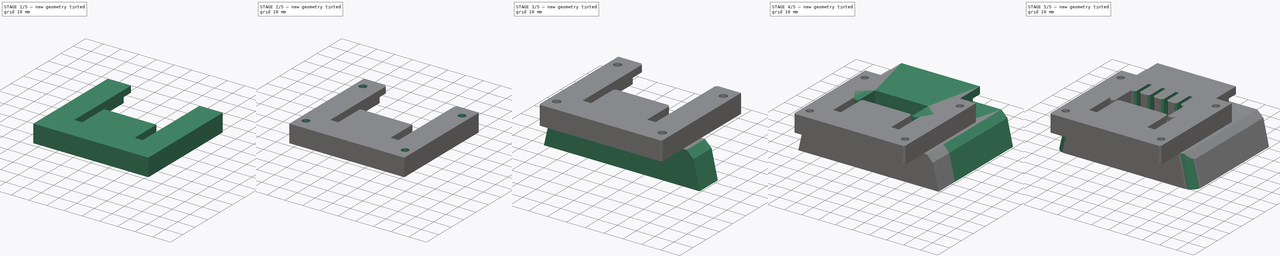
[diagram: build sequence overview — one tinted view per stage of 5, left to right]
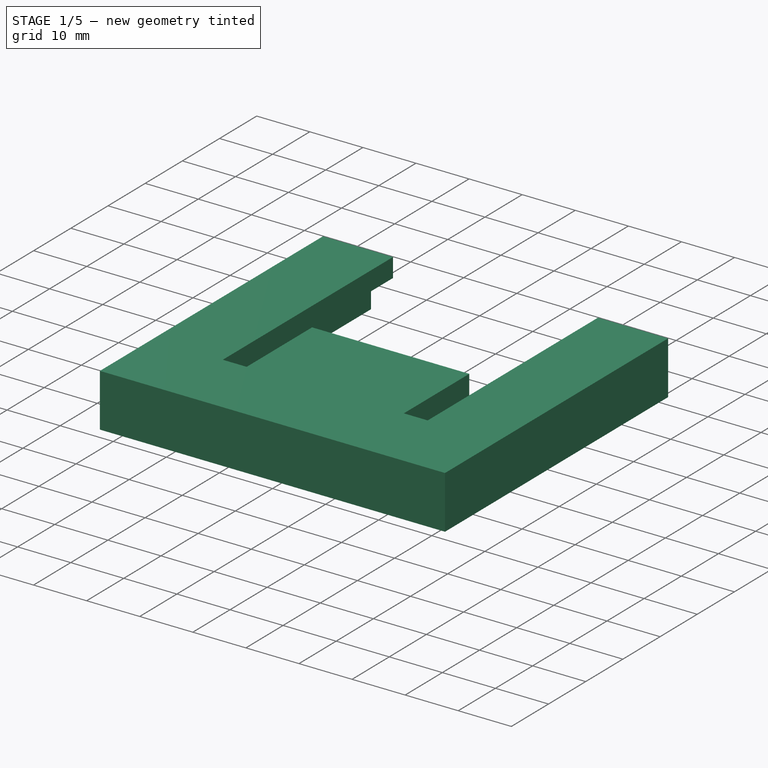
[diagram: stage 1 of 5 — iso view after this stage's code; geometry added in this stage tinted green]
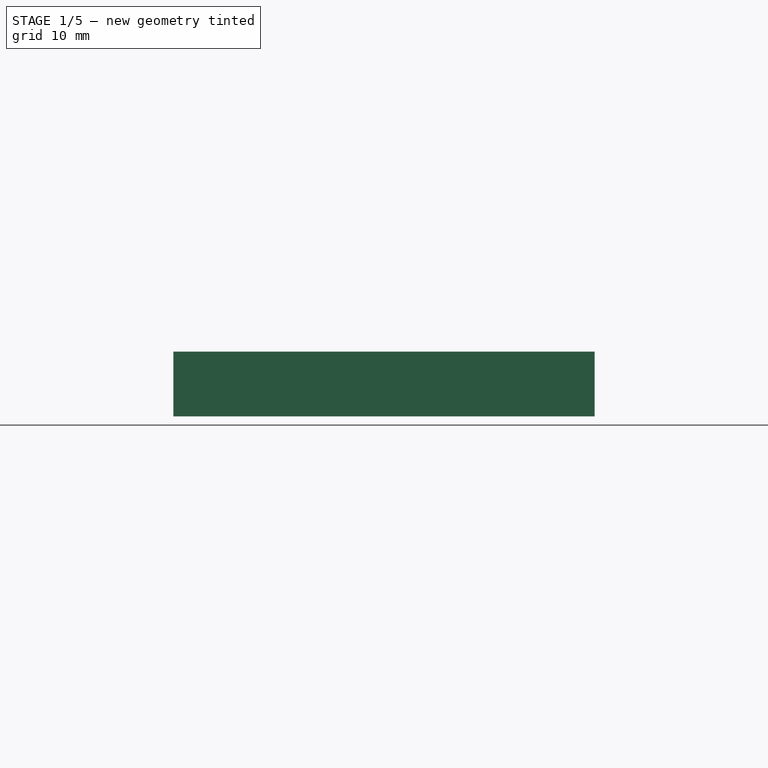
[diagram: stage 1 of 5 — front view after this stage's code; geometry added in this stage tinted green]
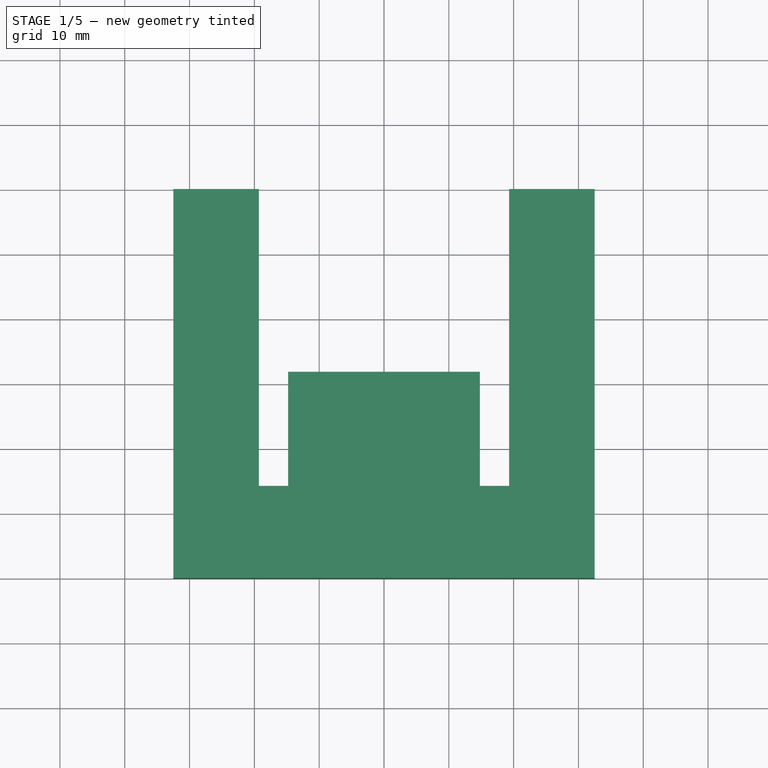
[diagram: stage 1 of 5 — top view after this stage's code; geometry added in this stage tinted green]
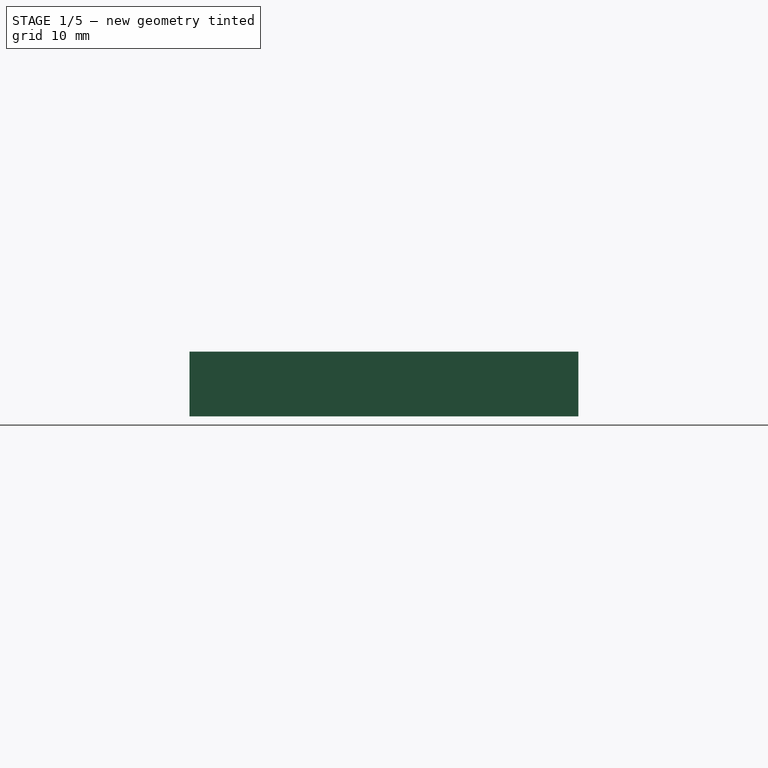
[diagram: stage 1 of 5 — right view after this stage's code; geometry added in this stage tinted green]
FCSTD DOCUMENT  (FreeCAD 0.20R29177 (Git))
Label: LIDLBatPlug_006
License: All rights reserved
LicenseURL: http://en.wikipedia.org/wiki/All_rights_reserved
objects: Sketcher::SketchObject×13, PartDesign::Pocket×10, PartDesign::Pad×4, PartDesign::Fillet×3, PartDesign::Chamfer×3, Spreadsheet::Sheet×2, PartDesign::Body×2, App::Part×2, PartDesign::Plane×1
note: 56 computed .brp shape members not serialized (recipe doc carries the construction recipe); baked Part::Feature solids carry a one-line shape summary decoded from their .brp

FEATURE [PartDesign::Body] Body
  Group = -> [Sketch,Pad,Pad001,Sketch001,Pad002,Sketch002,Pocket,Sketch003,Pocket001,Fillet,Sketch004,Pocket002,Sketch005,Pocket003,Fillet001]
  Origin = -> Origin001
  Tip = -> Fillet001
FEATURE [App::Part] Part  label="LIDLBattPlug"
  Group = -> [Body,Spreadsheet]
  Origin = -> Origin
  Placement = pos=(-1.3e-15,-11.8,10.6) rot=(0,1,0;3.14159rad)
FEATURE [Spreadsheet::Sheet] Spreadsheet001  label="lidlAdaptSp"
  cells = A2=long; B2(long)=60; A3=larg; B3(larg)=65; A4=jeu; B4(jeu)=0.6; A5=encocheLarg; B5(encocheLarg)=29.6; C5=mesuré; A6=encocheProf; B6(encocheProf)=17.6; C6=mesuré sur la base; A7=encocheGranProf; B7(encocheGranProf)=45.8; C7=mesuré sur la base; A8=encocheGrandeLarg; B8(encocheGrandeLarg)==tLargeurGrande; C8=mesuré sur la base; A9=languetteEcart; B9(languetteEcart)=24; A10=languetteEp; B10(languetteEp)==0.75 + jeu / 2; A11=languetteHaut; B11(languetteHaut)==8 + jeu + 0.1; A12=planLanguette; B12(planLanguette)==long / 2 - encocheGranProf + encocheProf; A13=languetteRainureLong; B13(languetteRainureLong)=15; A14=evidCablageLarg; B14(evidCablageLarg)==languetteEcart - 4; A15=evidCablageLong; B15(evidCablageLong)==long - encocheGranProf + encocheProf - 5; A16=evidCablageProf; B16(evidCablageProf)==languetteHaut; A17=evidCablagePosY; B17(evidCablagePosY)=1; A18=evidCavlLangPosY; B18(evidCavlLangPosY)==evidCablagePosY + 2; A19=visDistBordenY; B19(visDistBordenY)=7; A20=visCentrePetitCote; B20(visCentrePetitCote)==(larg - encocheGrandeLarg) / 4; A21=InsertDiam; B21(InsertDiam)=4; A22=visCentreVsCentreEnX; B22(visCentreVsCentreEnX)==encocheGrandeLarg / 2 + visCentrePetitCote; A23=visDistAuCentreEnY; B23(visDistAuCentreEnY)==long / 2 - visDistBordenY; A24=tLargeurPetite; B24(tLargeurPetite)=38.6; C24=mesuré sur la base; A25=tLargeurGrande; B25(tLargeurGrande)=46.9; C25=mesuré sur la base
FEATURE [Sketcher::SketchObject] Sketch006
  FullyConstrained = true
  MapMode = 5
  Support = -> [XY_Plane003]
  expr: Constraints[10] = <<lidlAdaptSp>>.larg
  expr: Constraints[11] = <<lidlAdaptSp>>.long
  sketch-geometry (5):
    g0: LineSegment StartX=-32.5 StartY=30 StartZ=0 EndX=-32.5 EndY=-30 EndZ=0
    g1: LineSegment StartX=-32.5 StartY=-30 StartZ=0 EndX=32.5 EndY=-30 EndZ=0
    g2: LineSegment StartX=32.5 StartY=-30 StartZ=0 EndX=32.5 EndY=30 EndZ=0
    g3: LineSegment StartX=32.5 StartY=30 StartZ=0 EndX=-32.5 EndY=30 EndZ=0
    g4: GeomPoint X=0 Y=0 Z=0
  constraints (12):
    c: Coincident(g0,g1)
    c: Coincident(g1,g2)
    c: Coincident(g2,g3)
    c: Coincident(g3,g0)
    c: Horizontal(g1)
    c: Horizontal(g3)
    c: Vertical(g0)
    c: Vertical(g2)
    c: Symmetric(g1,g0,g4)
    c: Coincident(g4,g-1)
    c: DistanceX(g0,g1) = 65
    c: DistanceY(g0,g0) = 60
FEATURE [PartDesign::Pad] Pad003  label="formeDeBase"
  Direction = (0,0,1)
  Length = 10
  Length2 = 10
  Profile = -> Sketch006
  ReferenceAxis = -> Sketch006 [N_Axis]
  Type = 0
  expr: Length = <<lidlx20Sp>>.tHaut
FEATURE [Sketcher::SketchObject] Sketch007
  FullyConstrained = true
  MapMode = 5
  Support = -> [XY_Plane003]
  expr: Constraints[15] = <<lidlAdaptSp>>.tLargeurPetite
  expr: Constraints[16] = <<lidlAdaptSp>>.long / 2
  expr: Constraints[17] = <<lidlAdaptSp>>.encocheLarg
  expr: Constraints[18] = <<lidlAdaptSp>>.encocheProf
  expr: Constraints[19] = <<lidlAdaptSp>>.encocheGranProf
  sketch-geometry (8):
    g0: LineSegment StartX=-19.3 StartY=30 StartZ=0 EndX=-19.3 EndY=-15.8 EndZ=0
    g1: LineSegment StartX=-19.3 StartY=-15.8 StartZ=0 EndX=-14.8 EndY=-15.8 EndZ=0
    g2: LineSegment StartX=-14.8 StartY=-15.8 StartZ=0 EndX=-14.8 EndY=1.8 EndZ=0
    g3: LineSegment StartX=-14.8 StartY=1.8 StartZ=0 EndX=14.8 EndY=1.8 EndZ=0
    g4: LineSegment StartX=14.8 StartY=1.8 StartZ=0 EndX=14.8 EndY=-15.8 EndZ=0
    g5: LineSegment StartX=14.8 StartY=-15.8 StartZ=0 EndX=19.3 EndY=-15.8 EndZ=0
    g6: LineSegment StartX=19.3 StartY=-15.8 StartZ=0 EndX=19.3 EndY=30 EndZ=0
    g7: LineSegment StartX=19.3 StartY=30 StartZ=0 EndX=-19.3 EndY=30 EndZ=0
  constraints (20):
    c: Vertical(g0)
    c: Coincident(g0,g1)
    c: Coincident(g1,g2)
    c: Coincident(g2,g3)
    c: Coincident(g3,g4)
    c: Vertical(g4)
    c: Coincident(g4,g5)
    c: Horizontal(g5)
    c: Coincident(g5,g6)
    c: Coincident(g6,g7)
    c: Coincident(g7,g0)
    c: Symmetric(g1,g4,g-2)
    c: Symmetric(g2,g3,g-2)
    c: Symmetric(g0,g5,g-2)
    c: Symmetric(g0,g6,g-2)
    c: DistanceX(g0,g6) = 38.6
    c: DistanceY(g-1,g0) = 30
    c: DistanceX(g2,g3) = 29.6
    c: DistanceY(g4,g3) = 17.6
    c: DistanceY(g5,g6) = 45.8
FEATURE [PartDesign::Pocket] Pocket004  label="encoche"
  BaseFeature = -> Pad003
  Direction = (0,0,-1)
  Length = 5
  Length2 = 5
  Profile = -> Sketch007
  ReferenceAxis = -> Sketch007 [N_Axis]
  Reversed = true
  Type = 1
FEATURE [Sketcher::SketchObject] Sketch008
  FullyConstrained = true
  MapMode = 5
  Support = -> [XY_Plane003]
  expr: Constraints[17] = <<lidlAdaptSp>>.encocheLarg
  expr: Constraints[18] = <<lidlAdaptSp>>.encocheProf
  expr: Constraints[7] = <<lidlAdaptSp>>.encocheGrandeLarg
  expr: Constraints[8] = <<lidlAdaptSp>>.encocheGranProf
  expr: Constraints[9] = <<lidlAdaptSp>>.long / 2
  sketch-geometry (8):
    g0: LineSegment StartX=-23.45 StartY=30 StartZ=0 EndX=23.45 EndY=30 EndZ=0
    g1: LineSegment StartX=23.45 StartY=30 StartZ=0 EndX=23.45 EndY=-15.8 EndZ=0
    g2: LineSegment StartX=23.45 StartY=-15.8 StartZ=0 EndX=14.8 EndY=-15.8 EndZ=0
    g3: LineSegment StartX=-23.45 StartY=-15.8 StartZ=0 EndX=-23.45 EndY=30 EndZ=0
    g4: LineSegment StartX=-14.8 StartY=-15.8 StartZ=0 EndX=-14.8 EndY=1.8 EndZ=0
    g5: LineSegment StartX=-14.8 StartY=1.8 StartZ=0 EndX=14.8 EndY=1.8 EndZ=0
    g6: LineSegment StartX=14.8 StartY=1.8 StartZ=0 EndX=14.8 EndY=-15.8 EndZ=0
    g7: LineSegment StartX=-14.8 StartY=-15.8 StartZ=0 EndX=-23.45 EndY=-15.8 EndZ=0
  constraints (21):
    c: Coincident(g0,g1)
    c: Coincident(g1,g2)
    c: Coincident(g7,g3)
    c: Coincident(g3,g0)
    c: Horizontal(g2)
    c: Vertical(g1)
    c: Symmetric(g0,g0,g-2)
    c: DistanceX(g0,g0) = 46.9
    c: DistanceY(g7,g0) = 45.8
    c: DistanceY(g-1,g0) = 30
    c: Vertical(g4)
    c: Coincident(g4,g5)
    c: Horizontal(g5)
    c: Coincident(g5,g6)
    c: Vertical(g6)
    c: Symmetric(g4,g6,g-2)
    c: Coincident(g7,g4)
    c: DistanceX(g4,g5) = 29.6
    c: DistanceY(g2,g5) = 17.6
    c: Coincident(g2,g6)
    c: Symmetric(g1,g3,g-2)
FEATURE [PartDesign::Pocket] Pocket005
  BaseFeature = -> Pocket004
  Direction = (0,0,-1)
  Length = 6.43
  Length2 = 5
  Profile = -> Sketch008
  ReferenceAxis = -> Sketch008 [N_Axis]
  Reversed = true
  Type = 0
  expr: Length = <<lidlx20Sp>>.tHautPied + <<lidlAdaptSp>>.jeu
FEATURE [PartDesign::Plane] DatumPlane  label="planLanguette"
  AttachmentOffset = pos=(0,0,-1.8) rot=(0,0,1;0rad)
  Length = 76.4018
  MapMode = 5
  Placement = pos=(0,1.8,4e-16) rot=(1,0,0;1.5708rad)
  ResizeMode = 0
  Support = -> [XZ_Plane003]
  Width = 61.4018
  expr: .AttachmentOffset.Base.z = -<<lidlAdaptSp>>.planLanguette
FEATURE [Sketcher::SketchObject] Sketch009
  FullyConstrained = true
  MapMode = 5
  Placement = pos=(0,1.8,4e-16) rot=(1,0,0;1.5708rad)
  Support = -> [DatumPlane]
  expr: Constraints[17] = <<lidlAdaptSp>>.languetteEp
  expr: Constraints[20] = <<lidlAdaptSp>>.languetteEcart + <<lidlAdaptSp>>.languetteEp
  expr: Constraints[21] = <<lidlAdaptSp>>.languetteHaut
  sketch-geometry (8):
    g0: LineSegment StartX=-12.525 StartY=0 StartZ=0 EndX=-11.475 EndY=0 EndZ=0
    g1: LineSegment StartX=-11.475 StartY=0 StartZ=0 EndX=-11.475 EndY=8.7 EndZ=0
    g2: LineSegment StartX=-11.475 StartY=8.7 StartZ=0 EndX=-12.525 EndY=8.7 EndZ=0
    g3: LineSegment StartX=-12.525 StartY=8.7 StartZ=0 EndX=-12.525 EndY=0 EndZ=0
    g4: LineSegment StartX=11.475 StartY=0 StartZ=0 EndX=12.525 EndY=0 EndZ=0
    g5: LineSegment StartX=12.525 StartY=0 StartZ=0 EndX=12.525 EndY=8.7 EndZ=0
    g6: LineSegment StartX=12.525 StartY=8.7 StartZ=0 EndX=11.475 EndY=8.7 EndZ=0
    g7: LineSegment StartX=11.475 StartY=8.7 StartZ=0 EndX=11.475 EndY=0 EndZ=0
  constraints (22):
    c: Coincident(g0,g1)
    c: Coincident(g1,g2)
    c: Coincident(g2,g3)
    c: Coincident(g3,g0)
    c: Horizontal(g0)
    c: Horizontal(g2)
    c: Vertical(g1)
    c: Vertical(g3)
    c: PointOnObject(g0,g-1)
    c: Coincident(g4,g5)
    c: Coincident(g5,g6)
    c: Coincident(g6,g7)
    c: Coincident(g7,g4)
    c: Horizontal(g4)
    c: Horizontal(g6)
    c: Vertical(g5)
    c: Vertical(g7)
    c: DistanceX(g2,g1) = 1.05
    c: Symmetric(g0,g4,g-2)
    c: Symmetric(g2,g5,g-2)
    c: DistanceX(g0,g4) = 25.05
    c: DistanceY(g4,g5) = 8.7
FEATURE [PartDesign::Pocket] Pocket006  label="languettes"
  BaseFeature = -> Pocket005
  Direction = (0,1,2e-16)
  Length = 15
  Length2 = 5
  Profile = -> Sketch009
  ReferenceAxis = -> Sketch009 [N_Axis]
  Reversed = true
  Type = 0
  expr: Length = <<lidlAdaptSp>>.languetteRainureLong
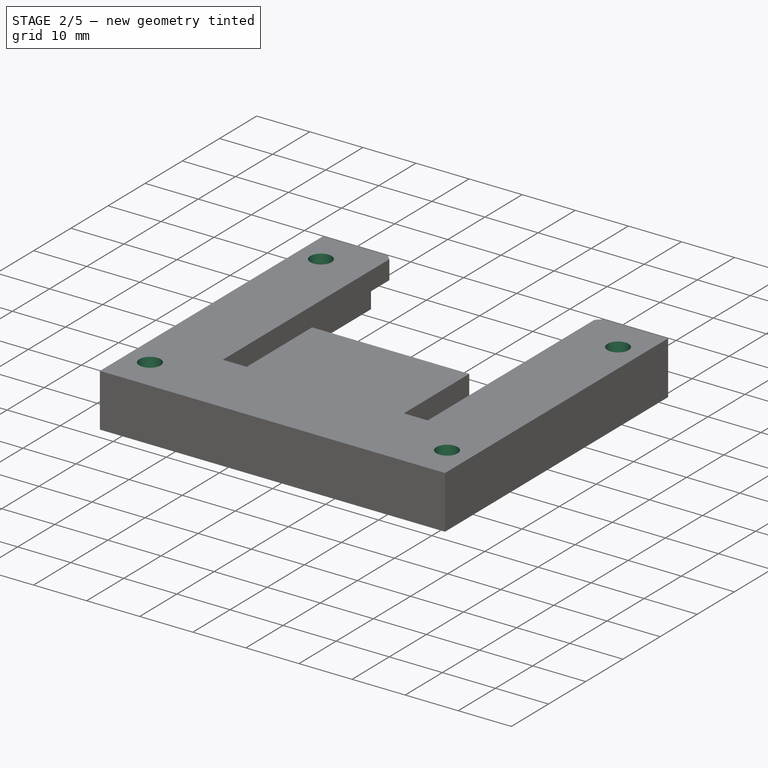
[diagram: stage 2 of 5 — iso view after this stage's code; geometry added in this stage tinted green]
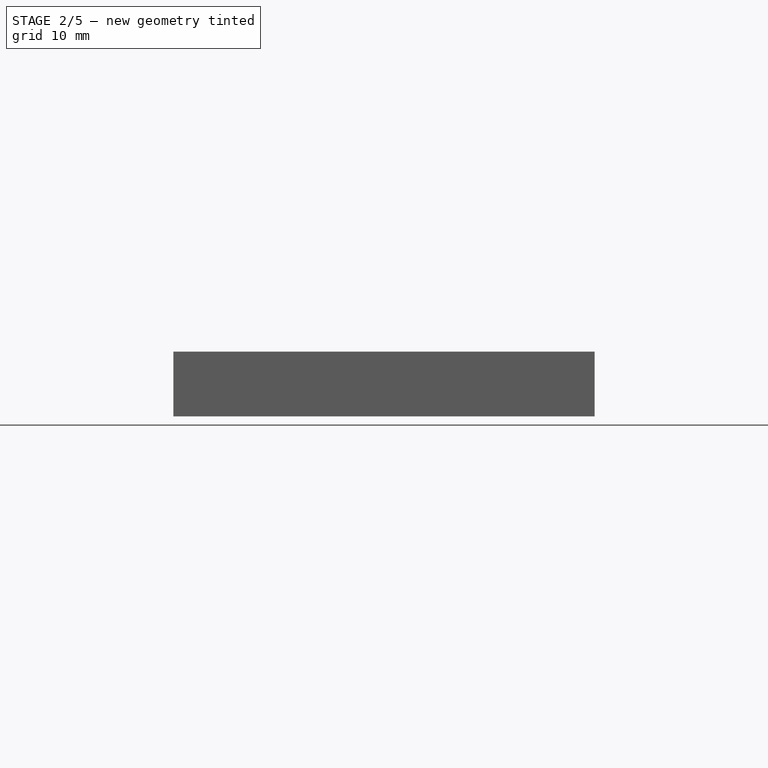
[diagram: stage 2 of 5 — front view after this stage's code; geometry added in this stage tinted green]
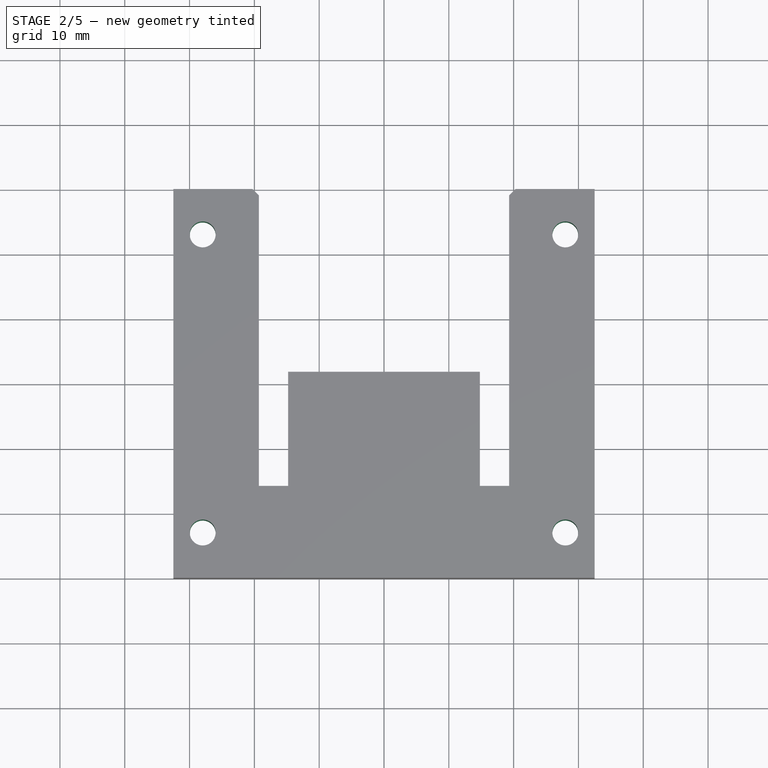
[diagram: stage 2 of 5 — top view after this stage's code; geometry added in this stage tinted green]
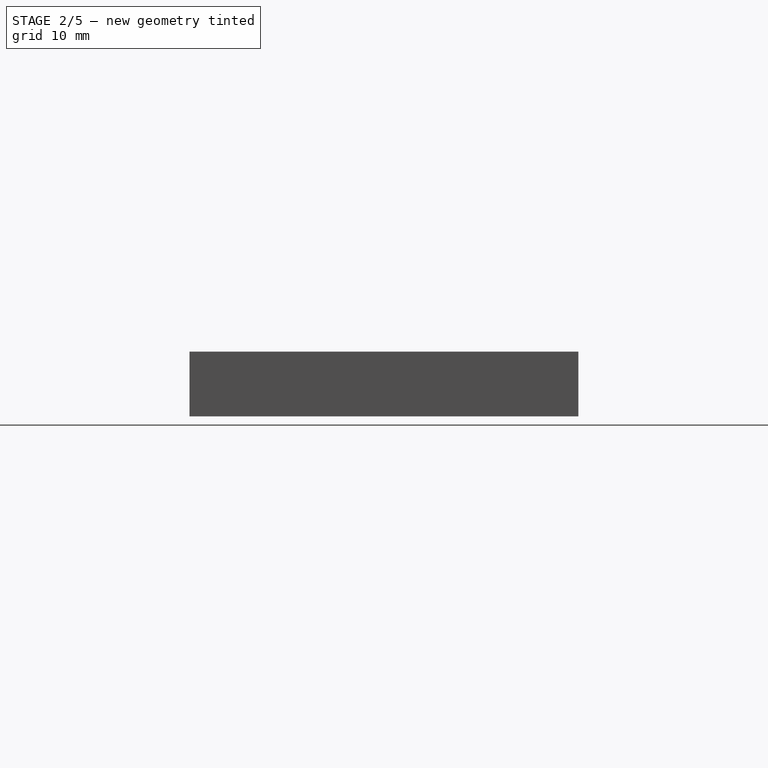
[diagram: stage 2 of 5 — right view after this stage's code; geometry added in this stage tinted green]
FEATURE [Sketcher::SketchObject] Sketch010
  FullyConstrained = true
  MapMode = 5
  Support = -> [XY_Plane003]
  expr: Constraints[10] = <<lidlAdaptSp>>.evidCablageLong
  expr: Constraints[7] = <<lidlAdaptSp>>.evidCablageLarg
  expr: Constraints[9] = <<lidlAdaptSp>>.evidCablagePosY
  sketch-geometry (4):
    g0: LineSegment StartX=-10 StartY=-27.8 StartZ=0 EndX=10 EndY=-27.8 EndZ=0
    g1: LineSegment StartX=10 StartY=-27.8 StartZ=0 EndX=10 EndY=-1 EndZ=0
    g2: LineSegment StartX=10 StartY=-1 StartZ=0 EndX=-10 EndY=-1 EndZ=0
    g3: LineSegment StartX=-10 StartY=-1 StartZ=0 EndX=-10 EndY=-27.8 EndZ=0
  constraints (11):
    c: Coincident(g0,g1)
    c: Coincident(g1,g2)
    c: Coincident(g2,g3)
    c: Coincident(g3,g0)
    c: Horizontal(g2)
    c: Vertical(g1)
    c: Vertical(g3)
    c: DistanceX(g0,g0) = 20
    c: Symmetric(g0,g0,g-2)
    c: DistanceY(g1,g-1) = 1
    c: DistanceY(g0,g1) = 26.8
FEATURE [PartDesign::Pocket] Pocket007  label="evidCablage"
  BaseFeature = -> Pocket006
  Direction = (0,0,-1)
  Length = 8.7
  Length2 = 5
  Profile = -> Sketch010
  ReferenceAxis = -> Sketch010 [N_Axis]
  Reversed = true
  Type = 0
  expr: Length = <<lidlAdaptSp>>.evidCablageProf
FEATURE [Sketcher::SketchObject] Sketch011
  FullyConstrained = true
  MapMode = 5
  Support = -> [XY_Plane003]
  expr: Constraints[16] = <<lidlAdaptSp>>.languetteEp
  expr: Constraints[18] = <<lidlAdaptSp>>.evidCavlLangPosY
  expr: Constraints[19] = <<lidlAdaptSp>>.evidCablageLarg
  expr: Constraints[20] = <<lidlAdaptSp>>.languetteEcart
  sketch-geometry (8):
    g0: LineSegment StartX=-12 StartY=-3 StartZ=0 EndX=-10 EndY=-3 EndZ=0
    g1: LineSegment StartX=-10 StartY=-3 StartZ=0 EndX=-10 EndY=-4.05 EndZ=0
    g2: LineSegment StartX=-10 StartY=-4.05 StartZ=0 EndX=-12 EndY=-4.05 EndZ=0
    g3: LineSegment StartX=-12 StartY=-4.05 StartZ=0 EndX=-12 EndY=-3 EndZ=0
    g4: LineSegment StartX=10 StartY=-3 StartZ=0 EndX=12 EndY=-3 EndZ=0
    g5: LineSegment StartX=12 StartY=-3 StartZ=0 EndX=12 EndY=-4.05 EndZ=0
    g6: LineSegment StartX=12 StartY=-4.05 StartZ=0 EndX=10 EndY=-4.05 EndZ=0
    g7: LineSegment StartX=10 StartY=-4.05 StartZ=0 EndX=10 EndY=-3 EndZ=0
  constraints (21):
    c: Coincident(g0,g1)
    c: Coincident(g1,g2)
    c: Coincident(g2,g3)
    c: Coincident(g3,g0)
    c: Horizontal(g0)
    c: Horizontal(g2)
    c: Vertical(g1)
    c: Vertical(g3)
    c: Coincident(g4,g5)
    c: Coincident(g5,g6)
    c: Coincident(g6,g7)
    c: Coincident(g7,g4)
    c: Horizontal(g6)
    c: Vertical(g5)
    c: Symmetric(g0,g4,g-2)
    c: Symmetric(g0,g4,g-2)
    c: DistanceY(g2,g0) = 1.05
    c: Symmetric(g1,g6,g-2)
    c: DistanceY(g0,g-1) = 3
    c: DistanceX(g0,g4) = 20
    c: DistanceX(g0,g4) = 24
FEATURE [PartDesign::Pocket] Pocket008  label="passageLangetteVersCablage"
  BaseFeature = -> Pocket007
  Direction = (0,0,-1)
  Length = 8.7
  Length2 = 5
  Profile = -> Sketch011
  ReferenceAxis = -> Sketch011 [N_Axis]
  Reversed = true
  Type = 0
  expr: Length = <<lidlAdaptSp>>.languetteHaut
FEATURE [Sketcher::SketchObject] Sketch012
  FullyConstrained = true
  MapMode = 5
  Support = -> [XY_Plane003]
  expr: Constraints[14] = <<lidlAdaptSp>>.InsertDiam
  expr: Constraints[18] = <<lidlAdaptSp>>.visDistAuCentreEnY
  expr: Constraints[19] = <<lidlAdaptSp>>.visCentreVsCentreEnX
  sketch-geometry (9):
    g0: LineSegment StartX=-27.975 StartY=23 StartZ=0 EndX=-27.975 EndY=-23 EndZ=0
    g1: LineSegment StartX=-27.975 StartY=-23 StartZ=0 EndX=27.975 EndY=-23 EndZ=0
    g2: LineSegment StartX=27.975 StartY=-23 StartZ=0 EndX=27.975 EndY=23 EndZ=0
    g3: LineSegment StartX=27.975 StartY=23 StartZ=0 EndX=-27.975 EndY=23 EndZ=0
    g4: GeomPoint X=0 Y=0 Z=0
    g5: Circle CenterX=-27.975 CenterY=23 CenterZ=0 NormalX=0 NormalY=0 NormalZ=1 AngleXU=0 Radius=2
    g6: Circle CenterX=27.975 CenterY=23 CenterZ=0 NormalX=0 NormalY=0 NormalZ=1 AngleXU=0 Radius=2
    g7: Circle CenterX=27.975 CenterY=-23 CenterZ=0 NormalX=0 NormalY=0 NormalZ=1 AngleXU=0 Radius=2
    g8: Circle CenterX=-27.975 CenterY=-23 CenterZ=0 NormalX=0 NormalY=0 NormalZ=1 AngleXU=0 Radius=2
  constraints (20):
    c: Coincident(g0,g1)
    c: Coincident(g1,g2)
    c: Coincident(g2,g3)
    c: Coincident(g3,g0)
    c: Horizontal(g1)
    c: Horizontal(g3)
    c: Vertical(g0)
    c: Vertical(g2)
    c: Symmetric(g1,g0,g4)
    c: Coincident(g4,g-1)
    c: Coincident(g5,g0)
    c: Coincident(g6,g2)
    c: Coincident(g7,g1)
    c: Coincident(g8,g0)
    c: Diameter(g5) = 4
    c: Equal(g5,g6)
    c: Equal(g6,g7)
    c: Equal(g7,g8)
    c: DistanceY(g4,g5) = 23
    c: DistanceX(g5,g4) = 27.975
FEATURE [PartDesign::Pocket] Pocket009  label="vis"
  BaseFeature = -> Pocket008
  Direction = (0,0,-1)
  Length = 5
  Length2 = 5
  Profile = -> Sketch012
  ReferenceAxis = -> Sketch012 [N_Axis]
  Reversed = true
  Type = 1
FEATURE [PartDesign::Chamfer] Chamfer
  Angle = 45
  Base = -> Pocket009 [Edge77,Edge7]
  BaseFeature = -> Pocket009
  ChamferType = 0
  FlipDirection = false
  Size = 1
  Size2 = 1
  SupportTransform = false
  UseAllEdges = false
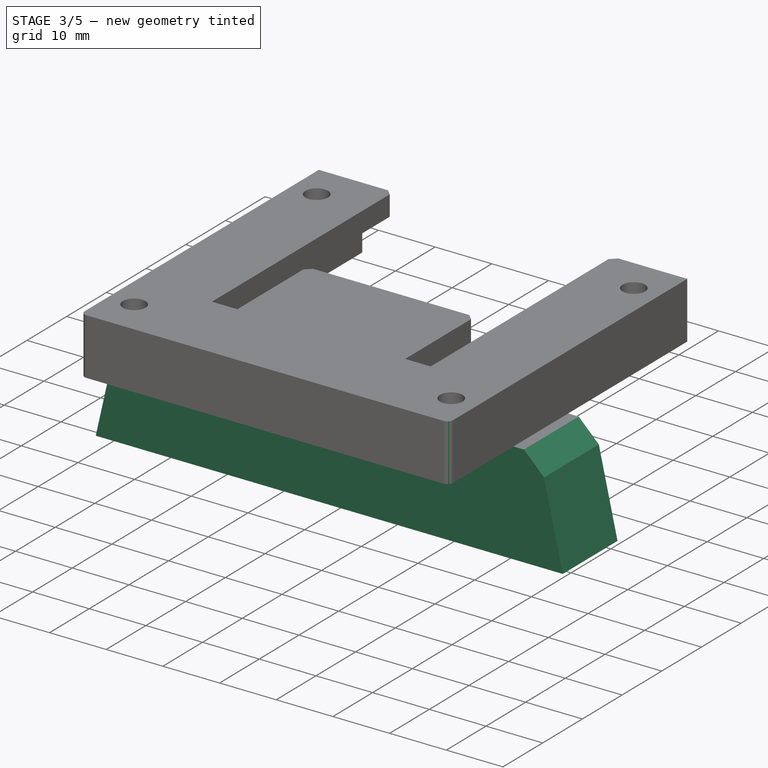
[diagram: stage 3 of 5 — iso view after this stage's code; geometry added in this stage tinted green]
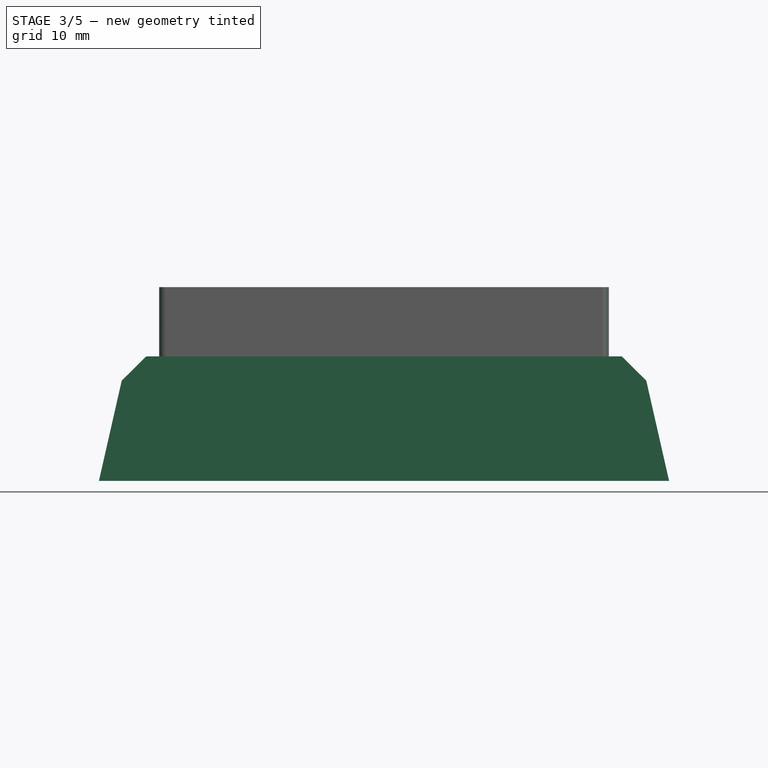
[diagram: stage 3 of 5 — front view after this stage's code; geometry added in this stage tinted green]
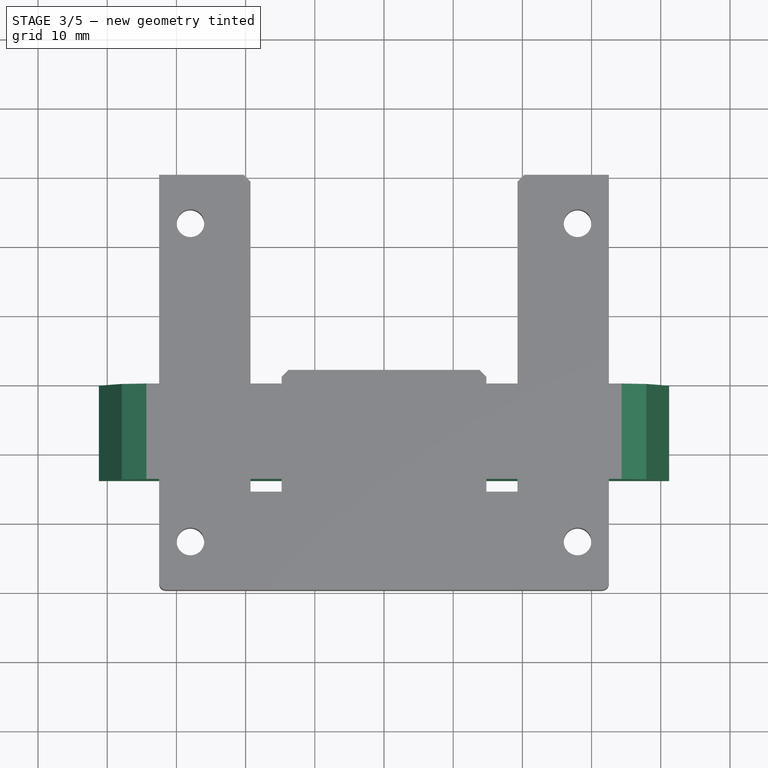
[diagram: stage 3 of 5 — top view after this stage's code; geometry added in this stage tinted green]
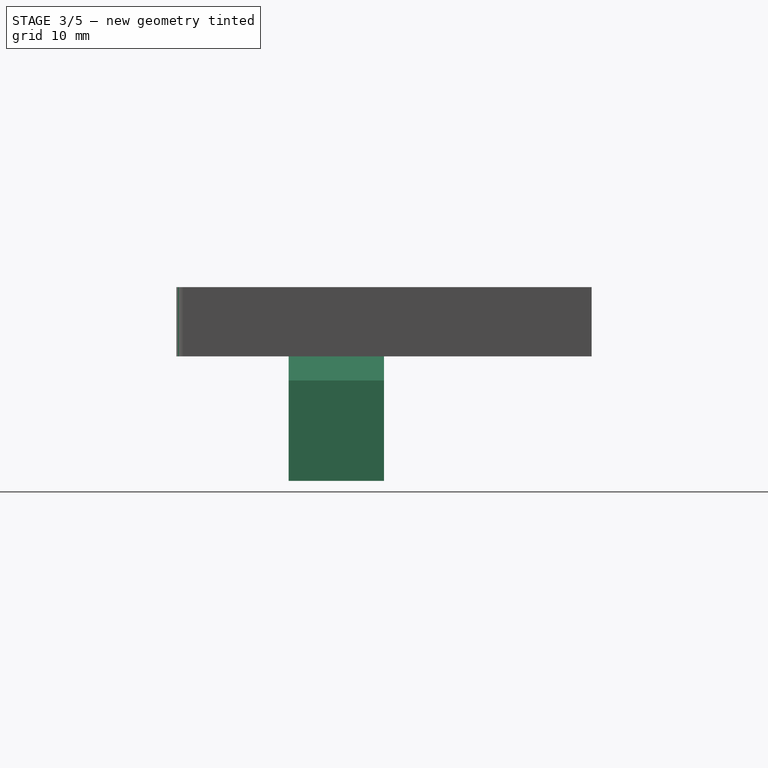
[diagram: stage 3 of 5 — right view after this stage's code; geometry added in this stage tinted green]
FEATURE [Sketcher::SketchObject] Sketch
  FullyConstrained = true
  MapMode = 5
  Placement = pos=(0,0,0) rot=(1,0,0;1.5708rad)
  Support = -> [XZ_Plane001]
  sketch-geometry (6):
    g0: LineSegment StartX=34.35 StartY=0 StartZ=0 EndX=-34.35 EndY=0 EndZ=0
    g1: LineSegment StartX=-34.35 StartY=0 StartZ=0 EndX=-37.9 EndY=-3.5 EndZ=0
    g2: LineSegment StartX=-37.9 StartY=-3.5 StartZ=0 EndX=-41.2 EndY=-18 EndZ=0
    g3: LineSegment StartX=-41.2 StartY=-18 StartZ=0 EndX=41.2 EndY=-18 EndZ=0
    g4: LineSegment StartX=41.2 StartY=-18 StartZ=0 EndX=37.9 EndY=-3.5 EndZ=0
    g5: LineSegment StartX=37.9 StartY=-3.5 StartZ=0 EndX=34.35 EndY=0 EndZ=0
  constraints (15):
    c: PointOnObject(g0,g-1)
    c: Coincident(g0,g1)
    c: Coincident(g1,g2)
    c: Coincident(g2,g3)
    c: Coincident(g3,g4)
    c: Coincident(g4,g5)
    c: Coincident(g5,g0)
    c: Symmetric(g0,g0,g-1)
    c: Symmetric(g1,g4,g-2)
    c: Symmetric(g2,g3,g-2)
    c: DistanceY(g4,g0) = 3.5
    c: DistanceY(g3,g0) = 18
    c: DistanceX(g0,g0) = 68.7
    c: DistanceX(g1,g4) = 75.8
    c: DistanceX(g3,g3) = 82.4
FEATURE [PartDesign::Pad] Pad
  Direction = (1,1,1)
  Length = 13.79
  Length2 = 100
  Placement = pos=(0,0,0) rot=(1,0,0;1.5708rad)
  Profile = -> Sketch
  Type = 0
FEATURE [PartDesign::Chamfer] Chamfer001
  Angle = 45
  Base = -> Chamfer [Edge79,Edge116,Edge93,Edge66]
  BaseFeature = -> Chamfer
  ChamferType = 0
  FlipDirection = false
  Size = 1
  Size2 = 1
  SupportTransform = false
  UseAllEdges = false
FEATURE [PartDesign::Chamfer] Chamfer002
  Angle = 45
  Base = -> Chamfer001 [Edge63,Edge49]
  BaseFeature = -> Chamfer001
  ChamferType = 0
  FlipDirection = false
  Size = 2
  Size2 = 1
  SupportTransform = false
  UseAllEdges = false
FEATURE [PartDesign::Fillet] Fillet002
  Base = -> Chamfer002 [Edge74,Edge43]
  BaseFeature = -> Chamfer002
  Radius = 1
  SupportTransform = false
  UseAllEdges = false
FEATURE [PartDesign::Body] Body001  label="lidlAdaptBdy"
  Group = -> [Sketch006,Pad003,Sketch007,Pocket004,Sketch008,Pocket005,DatumPlane,Sketch009,Pocket006,Sketch010,Pocket007,Sketch011,Pocket008,Sketch012,Pocket009,Chamfer,Chamfer001,Chamfer002,Fillet002]
  Origin = -> Origin003
  Tip = -> Fillet002
FEATURE [App::Part] Part001  label="LIDLBATAdapt"
  Group = -> [Body001,Spreadsheet001]
  Origin = -> Origin002
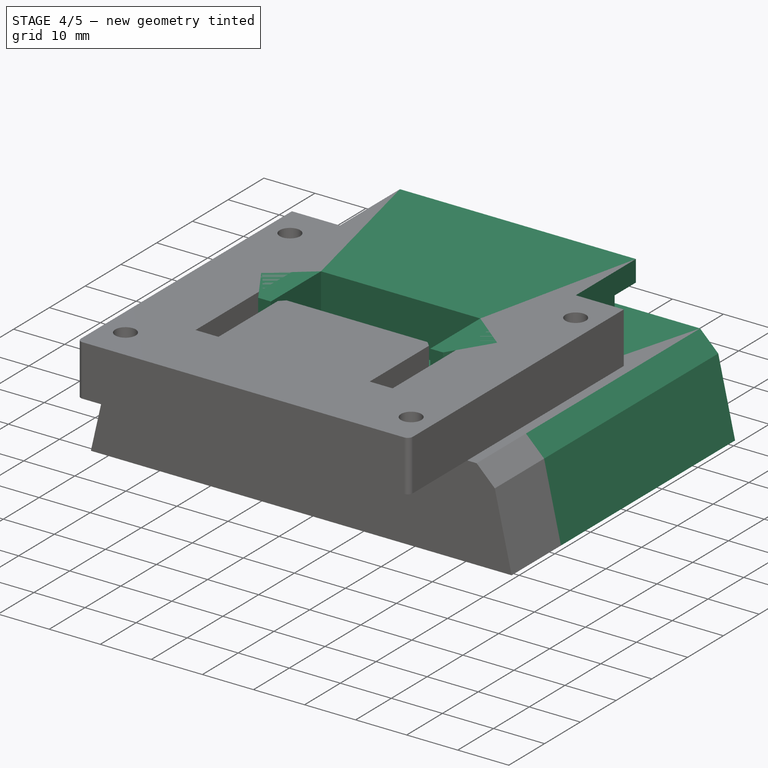
[diagram: stage 4 of 5 — iso view after this stage's code; geometry added in this stage tinted green]
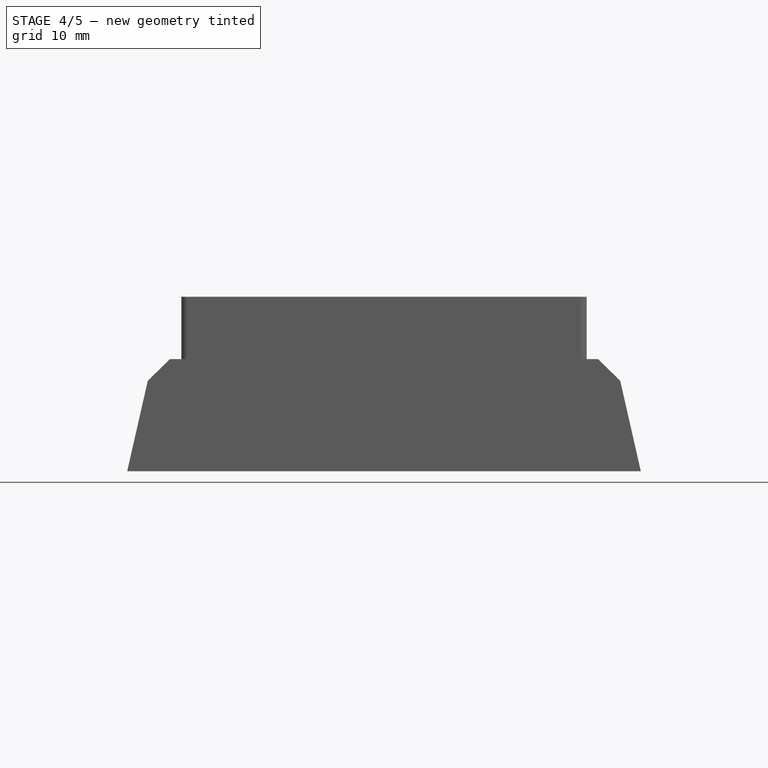
[diagram: stage 4 of 5 — front view after this stage's code; geometry added in this stage tinted green]
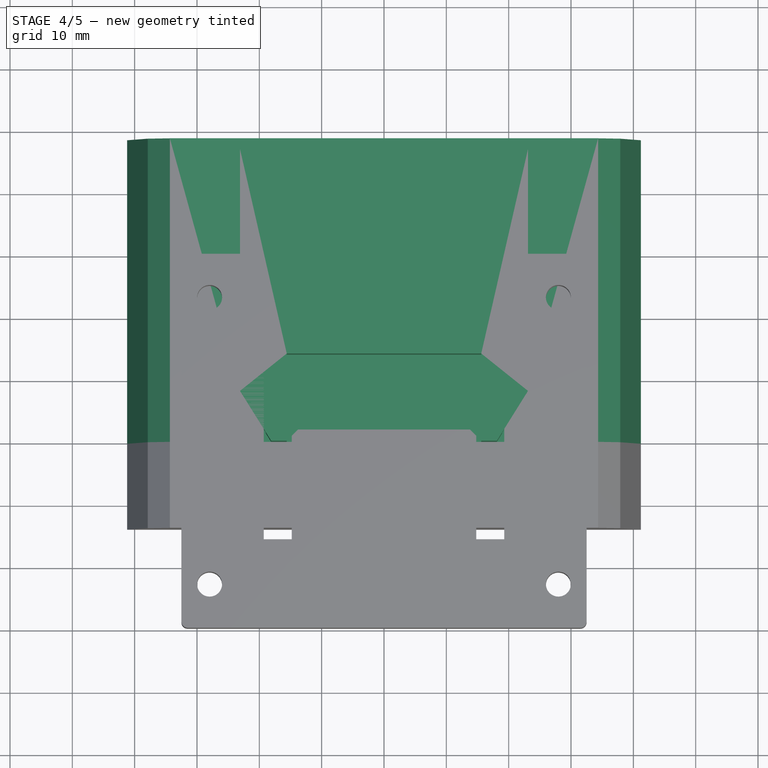
[diagram: stage 4 of 5 — top view after this stage's code; geometry added in this stage tinted green]
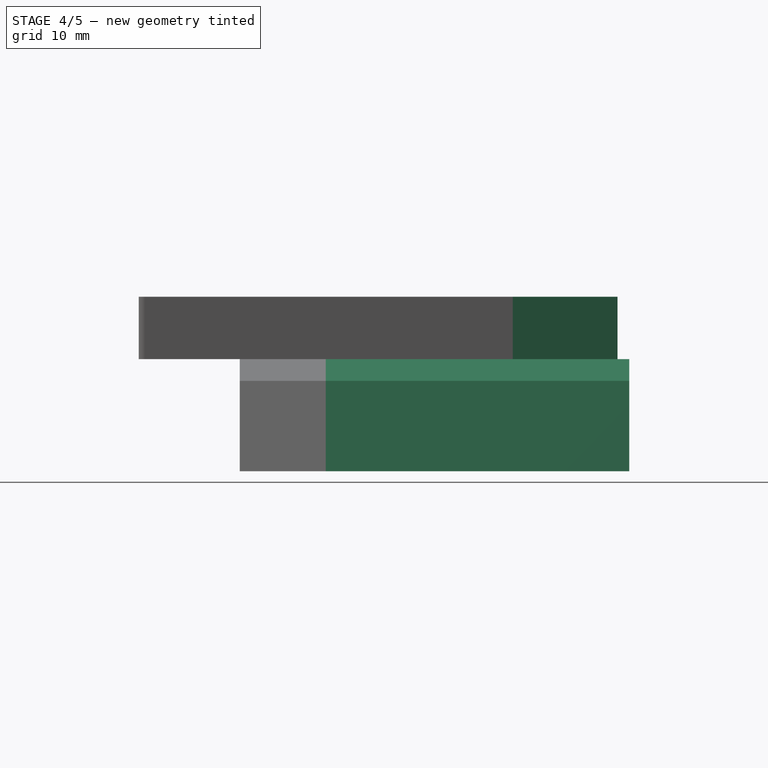
[diagram: stage 4 of 5 — right view after this stage's code; geometry added in this stage tinted green]
FEATURE [PartDesign::Pad] Pad001
  BaseFeature = -> Pad
  Direction = (1,1,1)
  Length = 48.7
  Length2 = 100
  Placement = pos=(0,0,0) rot=(1,0,0;1.5708rad)
  Profile = -> Sketch
  Reversed = true
  Type = 0
FEATURE [Sketcher::SketchObject] Sketch001
  FullyConstrained = true
  MapMode = 5
  Placement = pos=(0,0,0) rot=(1,0,0;1.5708rad)
  Support = -> [XZ_Plane001]
  expr: Constraints[16] = <<lidlx20Sp>>.tLargGrande
  expr: Constraints[17] = <<lidlx20Sp>>.tLargPetite
  expr: Constraints[18] = <<lidlx20Sp>>.tHaut
  expr: Constraints[19] = <<lidlx20Sp>>.tHautPied
  sketch-geometry (8):
    g0: LineSegment StartX=-18.95 StartY=0 StartZ=0 EndX=-18.95 EndY=5.83 EndZ=0
    g1: LineSegment StartX=-18.95 StartY=5.83 StartZ=0 EndX=-23.1 EndY=5.83 EndZ=0
    g2: LineSegment StartX=-23.1 StartY=5.83 StartZ=0 EndX=-23.1 EndY=10 EndZ=0
    g3: LineSegment StartX=-23.1 StartY=10 StartZ=0 EndX=23.1 EndY=10 EndZ=0
    g4: LineSegment StartX=23.1 StartY=10 StartZ=0 EndX=23.1 EndY=5.83 EndZ=0
    g5: LineSegment StartX=23.1 StartY=5.83 StartZ=0 EndX=18.95 EndY=5.83 EndZ=0
    g6: LineSegment StartX=18.95 StartY=5.83 StartZ=0 EndX=18.95 EndY=0 EndZ=0
    g7: LineSegment StartX=18.95 StartY=0 StartZ=0 EndX=-18.95 EndY=0 EndZ=0
  constraints (21):
    c: PointOnObject(g0,g-1)
    c: Vertical(g0)
    c: Coincident(g0,g1)
    c: Horizontal(g1)
    c: Coincident(g1,g2)
    c: Vertical(g2)
    c: Coincident(g2,g3)
    c: Coincident(g3,g4)
    c: Coincident(g4,g5)
    c: Coincident(g5,g6)
    c: Coincident(g6,g7)
    c: Coincident(g0,g7)
    c: Symmetric(g0,g6,g-1)
    c: Equal(g5,g1)
    c: Horizontal(g5)
    c: Symmetric(g2,g3,g-2)
    c: DistanceX(g3,g3) = 46.2
    c: DistanceX(g0,g6) = 37.9
    c: DistanceY(g6,g3) = 10
    c: DistanceY(g6,g5) = 5.83
    c: Symmetric(g0,g5,g-2)
FEATURE [Spreadsheet::Sheet] Spreadsheet  label="lidlx20Sp"
  cells = A2=tLargGrande; B2(tLargGrande)=46.2; A3=tLargPetite; B3(tLargPetite)=37.9; A4=tHaut; B4(tHaut)=10; A5=tEpChap; B5(tEpChap)==tHaut - tHautPied; A6=tHautPied; B6(tHautPied)=5.83; A7=tProf; B7(tProf)=46.8; A8=encocheLarg; B8(encocheLarg)=31.2; A9=encocheHaut; B9(encocheHaut)==tHaut; A10=encocheProf; B10(encocheProf)=14; A11=biseauProf; B11(biseauProf)=8; A12=biseauLarg; B12(biseauLarg)=5; A13=biseauHaut; B13(biseauHaut)==tHaut; A14=doigtLarg; B14(doigtLarg)=6; A15=doigtEcart; B15(doigtEcart)=2; A16=doigtProf; B16(doigtProf)=11; A17=doigtHaut; B17(doigtHaut)==tHaut
FEATURE [PartDesign::Pad] Pad002
  BaseFeature = -> Pad001
  Direction = (0,-1,-2e-16)
  Length = 46.8
  Length2 = 100
  Placement = pos=(0,0,0) rot=(1,0,0;1.5708rad)
  Profile = -> Sketch001
  Reversed = true
  Type = 0
  expr: Length = <<lidlx20Sp>>.tProf
FEATURE [Sketcher::SketchObject] Sketch002
  FullyConstrained = true
  MapMode = 5
  Placement = pos=(0,0,0) rot=(1,0,0;1.5708rad)
  Support = -> [XZ_Plane001]
  expr: Constraints[10] = <<lidlx20Sp>>.encocheHaut
  expr: Constraints[9] = <<lidlx20Sp>>.encocheLarg
  sketch-geometry (4):
    g0: LineSegment StartX=-15.6 StartY=10 StartZ=0 EndX=15.6 EndY=10 EndZ=0
    g1: LineSegment StartX=15.6 StartY=10 StartZ=0 EndX=15.6 EndY=0 EndZ=0
    g2: LineSegment StartX=15.6 StartY=0 StartZ=0 EndX=-15.6 EndY=0 EndZ=0
    g3: LineSegment StartX=-15.6 StartY=0 StartZ=0 EndX=-15.6 EndY=10 EndZ=0
  constraints (11):
    c: Coincident(g0,g1)
    c: Coincident(g1,g2)
    c: Coincident(g2,g3)
    c: Coincident(g3,g0)
    c: Horizontal(g0)
    c: Horizontal(g2)
    c: Vertical(g1)
    c: Vertical(g3)
    c: Symmetric(g2,g1,g-1)
    c: DistanceX(g0,g0) = 31.2
    c: DistanceY(g1,g1) = 10
FEATURE [PartDesign::Pocket] Pocket
  BaseFeature = -> Pad002
  Direction = (0,1,2e-16)
  Length = 14
  Length2 = 100
  Placement = pos=(0,0,0) rot=(1,0,0;1.5708rad)
  Profile = -> Sketch002
  Type = 0
  expr: Length = <<lidlx20Sp>>.encocheProf
FEATURE [Sketcher::SketchObject] Sketch003
  FullyConstrained = true
  MapMode = 5
  Support = -> [XY_Plane001]
  expr: Constraints[13] = <<lidlx20Sp>>.tLargGrande
  expr: Constraints[14] = <<lidlx20Sp>>.biseauLarg
  expr: Constraints[15] = <<lidlx20Sp>>.biseauProf
  sketch-geometry (6):
    g0: LineSegment StartX=18.1 StartY=0 StartZ=0 EndX=23.1 EndY=8 EndZ=0
    g1: LineSegment StartX=23.1 StartY=8 StartZ=0 EndX=23.1 EndY=0 EndZ=0
    g2: LineSegment StartX=23.1 StartY=0 StartZ=0 EndX=18.1 EndY=0 EndZ=0
    g3: LineSegment StartX=-23.1 StartY=3e-16 StartZ=0 EndX=-23.1 EndY=8 EndZ=0
    g4: LineSegment StartX=-23.1 StartY=8 StartZ=0 EndX=-18.1 EndY=0 EndZ=0
    g5: LineSegment StartX=-18.1 StartY=0 StartZ=0 EndX=-23.1 EndY=3e-16 EndZ=0
  constraints (17):
    c: PointOnObject(g0,g-1)
    c: Coincident(g0,g1)
    c: Vertical(g1)
    c: Coincident(g1,g2)
    c: Coincident(g2,g0)
    c: Horizontal(g2)
    c: Vertical(g3)
    c: Coincident(g3,g4)
    c: PointOnObject(g4,g-1)
    c: Coincident(g4,g5)
    c: Coincident(g5,g3)
    c: Equal(g5,g2)
    c: Symmetric(g1,g3,g-1)
    c: DistanceX(g3,g1) = 46.2
    c: DistanceX(g5,g5) = 5
    c: DistanceY(g1,g1) = 8
    c: Equal(g1,g3)
FEATURE [PartDesign::Pocket] Pocket001  label="biseaux"
  BaseFeature = -> Pocket
  Direction = (0,0,-1)
  Length = 10
  Length2 = 100
  Placement = pos=(0,0,0) rot=(1,0,0;1.5708rad)
  Profile = -> Sketch003
  Reversed = true
  Type = 0
  expr: Length = <<lidlx20Sp>>.biseauHaut
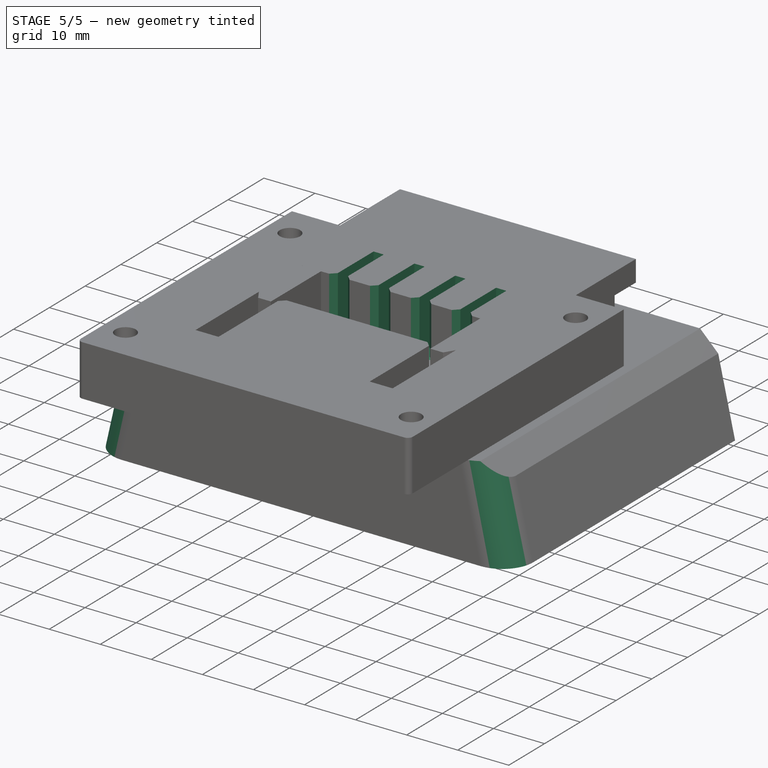
[diagram: stage 5 of 5 — iso view after this stage's code; geometry added in this stage tinted green]
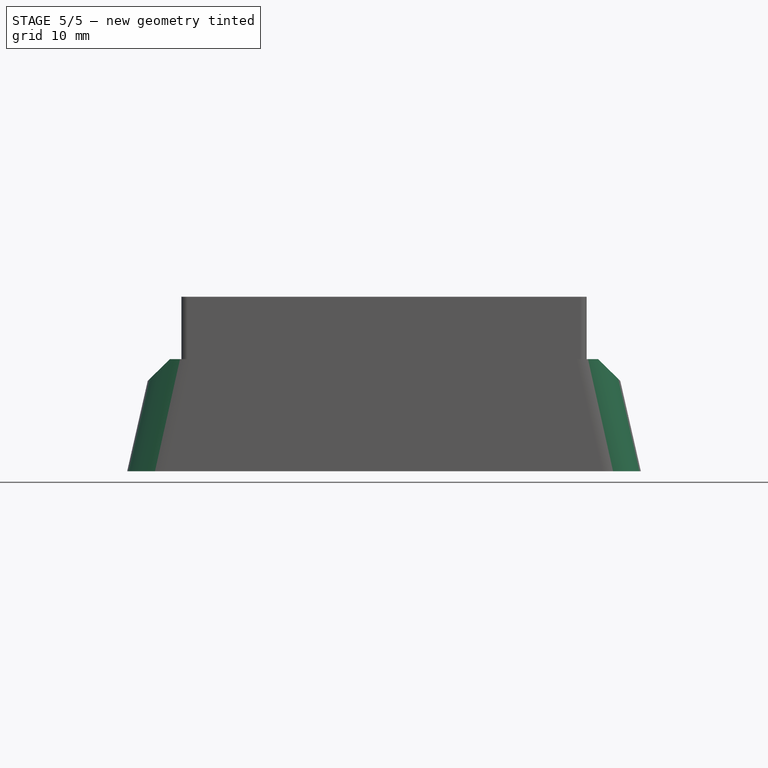
[diagram: stage 5 of 5 — front view after this stage's code; geometry added in this stage tinted green]
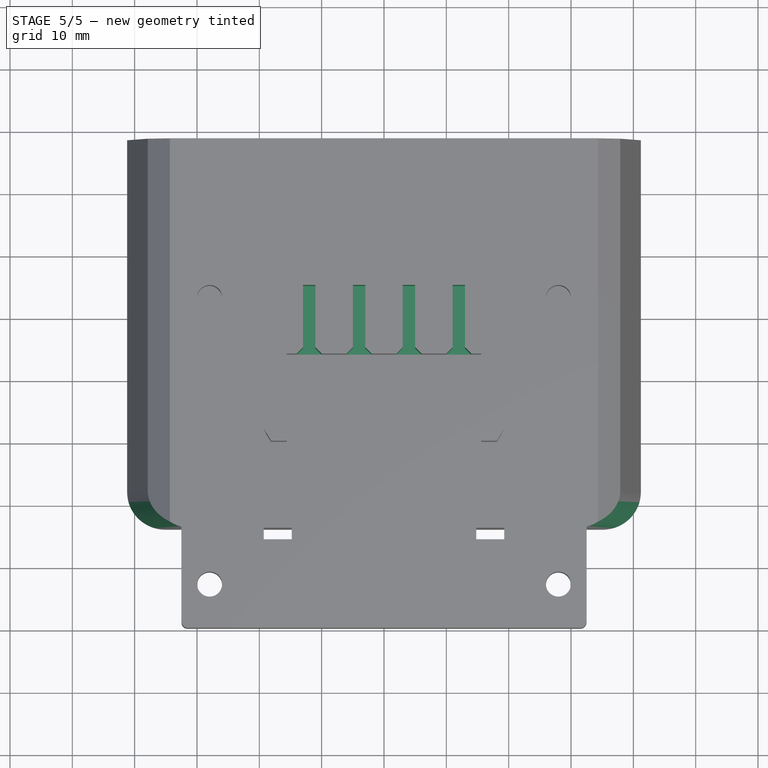
[diagram: stage 5 of 5 — top view after this stage's code; geometry added in this stage tinted green]
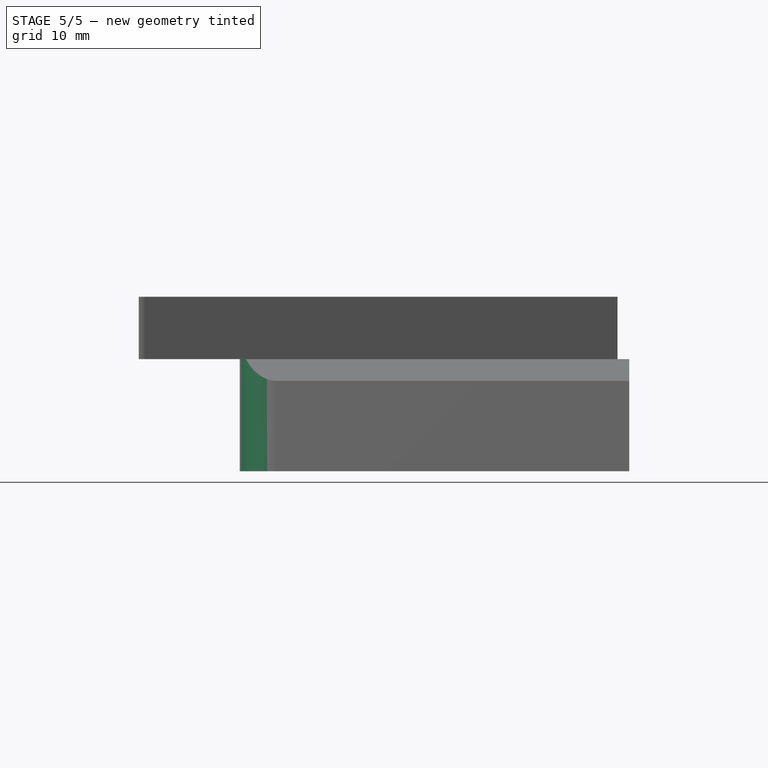
[diagram: stage 5 of 5 — right view after this stage's code; geometry added in this stage tinted green]
FEATURE [PartDesign::Fillet] Fillet
  Base = -> Pocket001 [Edge44,Edge42]
  BaseFeature = -> Pocket001
  Placement = pos=(0,0,0) rot=(1,0,0;1.5708rad)
  Radius = 6
  SupportTransform = false
  UseAllEdges = false
FEATURE [Sketcher::SketchObject] Sketch004
  FullyConstrained = true
  MapMode = 5
  Support = -> [XY_Plane001]
  expr: Constraints[64] = <<lidlx20Sp>>.doigtLarg
  expr: Constraints[68] = <<lidlx20Sp>>.doigtEcart
  expr: Constraints[69] = <<lidlx20Sp>>.doigtProf
  expr: Constraints[70] = <<lidlx20Sp>>.encocheProf
  sketch-geometry (28):
    g0: LineSegment StartX=-11 StartY=25 StartZ=0 EndX=-5 EndY=25 EndZ=0
    g1: LineSegment StartX=-5 StartY=25 StartZ=0 EndX=-5 EndY=14 EndZ=0
    g2: LineSegment StartX=-5 StartY=14 StartZ=0 EndX=-11 EndY=14 EndZ=0
    g3: LineSegment StartX=-11 StartY=14 StartZ=0 EndX=-11 EndY=25 EndZ=0
    g4: LineSegment StartX=-3 StartY=25 StartZ=0 EndX=3 EndY=25 EndZ=0
    g5: LineSegment StartX=3 StartY=25 StartZ=0 EndX=3 EndY=14 EndZ=0
    g6: LineSegment StartX=3 StartY=14 StartZ=0 EndX=-3 EndY=14 EndZ=0
    g7: LineSegment StartX=-3 StartY=14 StartZ=0 EndX=-3 EndY=25 EndZ=0
    g8: LineSegment StartX=5 StartY=25 StartZ=0 EndX=11 EndY=25 EndZ=0
    g9: LineSegment StartX=11 StartY=25 StartZ=0 EndX=11 EndY=14 EndZ=0
    g10: LineSegment StartX=11 StartY=14 StartZ=0 EndX=5 EndY=14 EndZ=0
    g11: LineSegment StartX=5 StartY=14 StartZ=0 EndX=5 EndY=25 EndZ=0
    g12: LineSegment StartX=-11 StartY=25 StartZ=0 EndX=-13 EndY=25 EndZ=0
    g13: LineSegment StartX=-13 StartY=25 StartZ=0 EndX=-13 EndY=14 EndZ=0
    g14: LineSegment StartX=-13 StartY=14 StartZ=0 EndX=-11 EndY=14 EndZ=0
    g15: LineSegment StartX=-11 StartY=14 StartZ=0 EndX=-11 EndY=25 EndZ=0
    g16: LineSegment StartX=-5 StartY=25 StartZ=0 EndX=-3 EndY=25 EndZ=0
    g17: LineSegment StartX=-3 StartY=25 StartZ=0 EndX=-3 EndY=14 EndZ=0
    g18: LineSegment StartX=-3 StartY=14 StartZ=0 EndX=-5 EndY=14 EndZ=0
    g19: LineSegment StartX=-5 StartY=14 StartZ=0 EndX=-5 EndY=25 EndZ=0
    g20: LineSegment StartX=3 StartY=25 StartZ=0 EndX=5 EndY=25 EndZ=0
    g21: LineSegment StartX=5 StartY=25 StartZ=0 EndX=5 EndY=14 EndZ=0
    g22: LineSegment StartX=5 StartY=14 StartZ=0 EndX=3 EndY=14 EndZ=0
    g23: LineSegment StartX=3 StartY=14 StartZ=0 EndX=3 EndY=25 EndZ=0
    g24: LineSegment StartX=11 StartY=25 StartZ=0 EndX=13 EndY=25 EndZ=0
    g25: LineSegment StartX=13 StartY=25 StartZ=0 EndX=13 EndY=14 EndZ=0
    g26: LineSegment StartX=13 StartY=14 StartZ=0 EndX=11 EndY=14 EndZ=0
    g27: LineSegment StartX=11 StartY=14 StartZ=0 EndX=11 EndY=25 EndZ=0
  constraints (71):
    c: Coincident(g0,g1)
    c: Coincident(g1,g2)
    c: Coincident(g2,g3)
    c: Coincident(g3,g0)
    c: Horizontal(g0)
    c: Horizontal(g2)
    c: Vertical(g1)
    c: Vertical(g3)
    c: Coincident(g4,g5)
    c: Coincident(g5,g6)
    c: Coincident(g6,g7)
    c: Coincident(g7,g4)
    c: Horizontal(g4)
    c: Vertical(g5)
    c: Vertical(g7)
    c: Coincident(g8,g9)
    c: Coincident(g9,g10)
    c: Coincident(g10,g11)
    c: Coincident(g11,g8)
    c: Horizontal(g8)
    c: Horizontal(g10)
    c: Vertical(g9)
    c: Vertical(g11)
    c: Coincident(g12,g13)
    c: Coincident(g13,g14)
    c: Coincident(g14,g15)
    c: Coincident(g15,g12)
    c: Horizontal(g12)
    c: Horizontal(g14)
    c: Vertical(g13)
    c: Coincident(g12,g0)
    c: Coincident(g16,g17)
    c: Coincident(g17,g18)
    c: Coincident(g18,g19)
    c: Coincident(g19,g16)
    c: Horizontal(g16)
    c: Horizontal(g18)
    c: Coincident(g16,g0)
    c: Coincident(g17,g6)
    c: Coincident(g20,g21)
    c: Coincident(g21,g22)
    c: Coincident(g22,g23)
    c: Coincident(g23,g20)
    c: Horizontal(g20)
    c: Horizontal(g22)
    c: Coincident(g20,g4)
    c: Coincident(g21,g10)
    c: Coincident(g24,g25)
    c: Coincident(g25,g26)
    c: Coincident(g26,g27)
    c: Coincident(g27,g24)
    c: Horizontal(g24)
    c: Horizontal(g26)
    c: Vertical(g25)
    c: Coincident(g24,g8)
    c: Symmetric(g5,g17,g-2)
    c: Coincident(g16,g4)
    c: Coincident(g20,g8)
    c: Coincident(g26,g9)
    c: Coincident(g22,g5)
    c: Coincident(g14,g2)
    c: Coincident(g1,g18)
    c: Equal(g0,g4)
    c: Equal(g4,g8)
    c: DistanceX(g4,g4) = 6
    c: Equal(g20,g24)
    c: Equal(g24,g16)
    c: Equal(g16,g12)
    c: DistanceX(g20,g20) = 2
    c: DistanceY(g25,g25) = 11
    c: DistanceY(g-1,g25) = 14
FEATURE [PartDesign::Pocket] Pocket002
  BaseFeature = -> Fillet
  Direction = (0,0,-1)
  Length = 10
  Length2 = 100
  Placement = pos=(0,0,0) rot=(1,0,0;1.5708rad)
  Profile = -> Sketch004
  Reversed = true
  Type = 0
  expr: Length = <<lidlx20Sp>>.doigtHaut
FEATURE [Sketcher::SketchObject] Sketch005
  ExternalGeometry = -> [Pocket002]
  FullyConstrained = true
  MapMode = 5
  Placement = pos=(0,-1.1e-15,10) rot=(0,0,1;3.14159rad)
  Support = -> [Pocket002]
  sketch-geometry (24):
    g0: LineSegment StartX=13 StartY=-15 StartZ=0 EndX=14 EndY=-14 EndZ=0
    g1: LineSegment StartX=14 StartY=-14 StartZ=0 EndX=13 EndY=-14 EndZ=0
    g2: LineSegment StartX=13 StartY=-14 StartZ=0 EndX=13 EndY=-15 EndZ=0
    g3: LineSegment StartX=11 StartY=-14 StartZ=0 EndX=11 EndY=-15 EndZ=0
    g4: LineSegment StartX=11 StartY=-15 StartZ=0 EndX=10 EndY=-14 EndZ=0
    g5: LineSegment StartX=10 StartY=-14 StartZ=0 EndX=11 EndY=-14 EndZ=0
    g6: LineSegment StartX=5 StartY=-15 StartZ=0 EndX=6 EndY=-14 EndZ=0
    g7: LineSegment StartX=6 StartY=-14 StartZ=0 EndX=5 EndY=-14 EndZ=0
    g8: LineSegment StartX=5 StartY=-14 StartZ=0 EndX=5 EndY=-15 EndZ=0
    g9: LineSegment StartX=2 StartY=-14 StartZ=0 EndX=3 EndY=-15 EndZ=0
    g10: LineSegment StartX=3 StartY=-15 StartZ=0 EndX=3 EndY=-14 EndZ=0
    g11: LineSegment StartX=3 StartY=-14 StartZ=0 EndX=2 EndY=-14 EndZ=0
    g12: LineSegment StartX=-3 StartY=-14 StartZ=0 EndX=-3 EndY=-15 EndZ=0
    g13: LineSegment StartX=-3 StartY=-15 StartZ=0 EndX=-2 EndY=-14 EndZ=0
    g14: LineSegment StartX=-2 StartY=-14 StartZ=0 EndX=-3 EndY=-14 EndZ=0
    g15: LineSegment StartX=-6 StartY=-14 StartZ=0 EndX=-5 EndY=-15 EndZ=0
    g16: LineSegment StartX=-5 StartY=-15 StartZ=0 EndX=-5 EndY=-14 EndZ=0
    g17: LineSegment StartX=-5 StartY=-14 StartZ=0 EndX=-6 EndY=-14 EndZ=0
    g18: LineSegment StartX=-11 StartY=-14 StartZ=0 EndX=-11 EndY=-15 EndZ=0
    g19: LineSegment StartX=-11 StartY=-15 StartZ=0 EndX=-10 EndY=-14 EndZ=0
    g20: LineSegment StartX=-10 StartY=-14 StartZ=0 EndX=-11 EndY=-14 EndZ=0
    g21: LineSegment StartX=-13 StartY=-14 StartZ=0 EndX=-13 EndY=-15 EndZ=0
    g22: LineSegment StartX=-13 StartY=-15 StartZ=0 EndX=-14 EndY=-14 EndZ=0
    g23: LineSegment StartX=-14 StartY=-14 StartZ=0 EndX=-13 EndY=-14 EndZ=0
  constraints (64):
    c: Coincident(g0,g1)
    c: Coincident(g1,g2)
    c: Coincident(g2,g0)
    c: Vertical(g2)
    c: Vertical(g3)
    c: Coincident(g3,g4)
    c: Coincident(g4,g5)
    c: Coincident(g5,g3)
    c: Coincident(g6,g7)
    c: Coincident(g7,g8)
    c: Coincident(g8,g6)
    c: Vertical(g8)
    c: Horizontal(g7)
    c: Horizontal(g5)
    c: Horizontal(g1)
    c: Equal(g1,g5)
    c: Equal(g5,g7)
    c: Equal(g7,g8)
    c: Equal(g8,g3)
    c: Equal(g3,g2)
    c: DistanceX(g1,g1) = 1
    c: Coincident(g1,g-3)
    c: Coincident(g3,g-4)
    c: Coincident(g7,g-5)
    c: Coincident(g9,g10)
    c: Vertical(g10)
    c: Coincident(g10,g11)
    c: Coincident(g11,g9)
    c: Vertical(g12)
    c: Coincident(g12,g13)
    c: Coincident(g13,g14)
    c: Coincident(g14,g12)
    c: Coincident(g15,g16)
    c: Vertical(g16)
    c: Coincident(g16,g17)
    c: Coincident(g17,g15)
    c: Vertical(g18)
    c: Coincident(g18,g19)
    c: Coincident(g19,g20)
    c: Coincident(g20,g18)
    c: Vertical(g21)
    c: Coincident(g21,g22)
    c: Coincident(g22,g23)
    c: Coincident(g23,g21)
    c: Horizontal(g23)
    c: Horizontal(g20)
    c: Horizontal(g17)
    c: Horizontal(g14)
    c: Horizontal(g11)
    c: Equal(g10,g11)
    c: Equal(g11,g14)
    c: Equal(g14,g12)
    c: Equal(g12,g16)
    c: Equal(g16,g17)
    c: Equal(g17,g20)
    c: Equal(g20,g18)
    c: Equal(g18,g21)
    c: Equal(g21,g23)
    c: Equal(g23,g7)
    c: Coincident(g16,g-8)
    c: Coincident(g12,g-7)
    c: Coincident(g10,g-6)
    c: Coincident(g18,g-9)
    c: Coincident(g21,g-10)
FEATURE [PartDesign::Pocket] Pocket003
  BaseFeature = -> Pocket002
  Direction = (0,-2e-16,-1)
  Length = 0
  Length2 = 100
  Placement = pos=(0,0,0) rot=(1,0,0;1.5708rad)
  Profile = -> Sketch005
  Type = 3
  UpToFace = -> Pocket002 [Face11]
FEATURE [PartDesign::Fillet] Fillet001
  Base = -> Pocket003 [Edge91,Edge162]
  BaseFeature = -> Pocket003
  Placement = pos=(0,0,0) rot=(1,0,0;1.5708rad)
  Radius = 2
  SupportTransform = false
  UseAllEdges = false
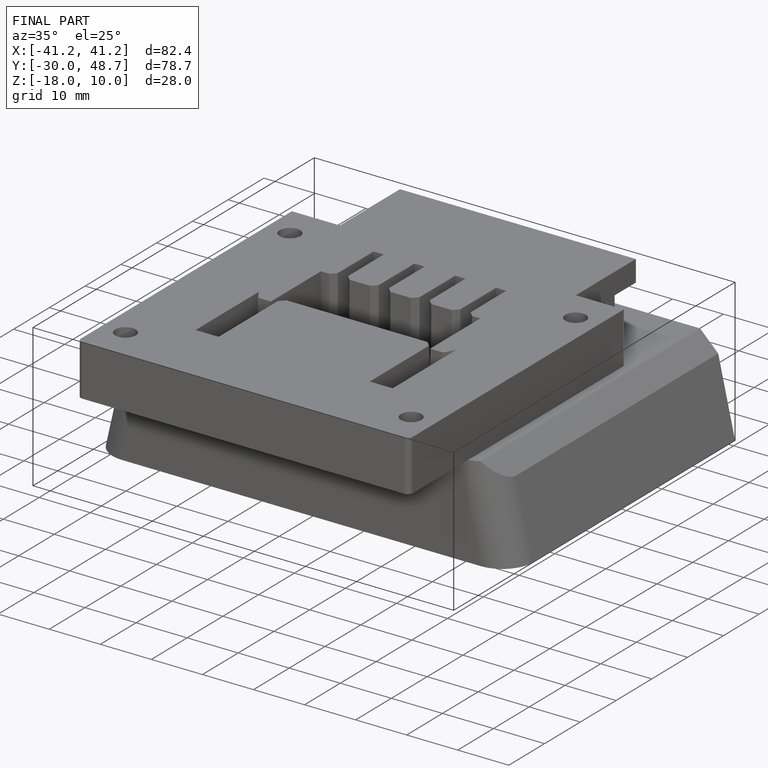
[diagram: finished part — iso view with bounding-box wireframe]
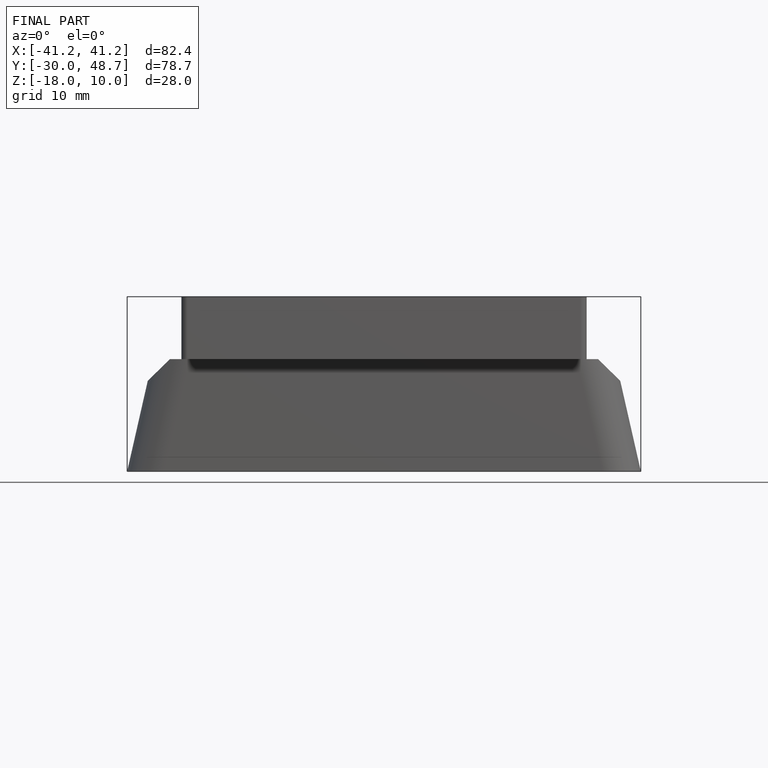
[diagram: finished part — front view with bounding-box wireframe]
